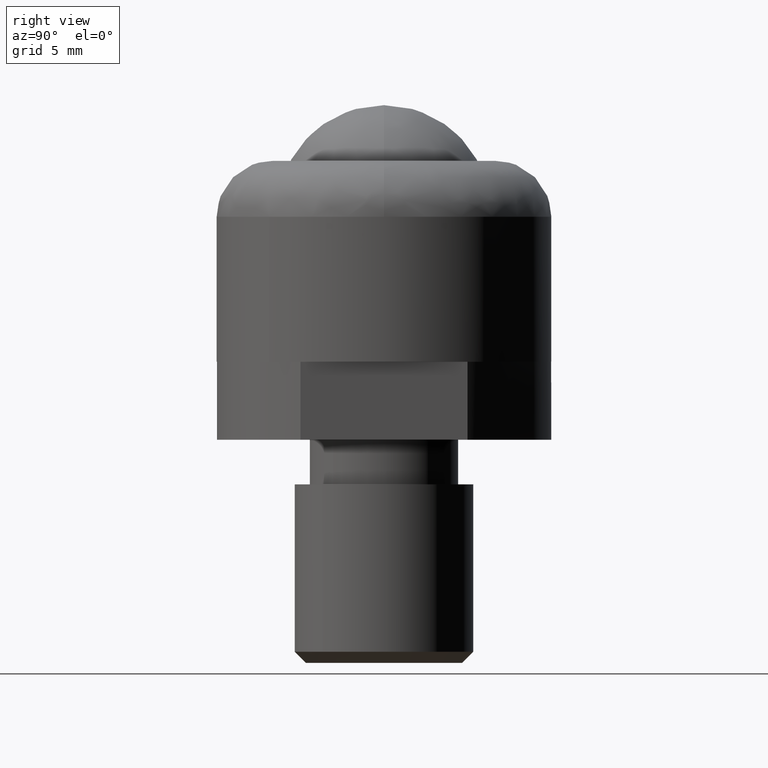
[diagram: clean part render]
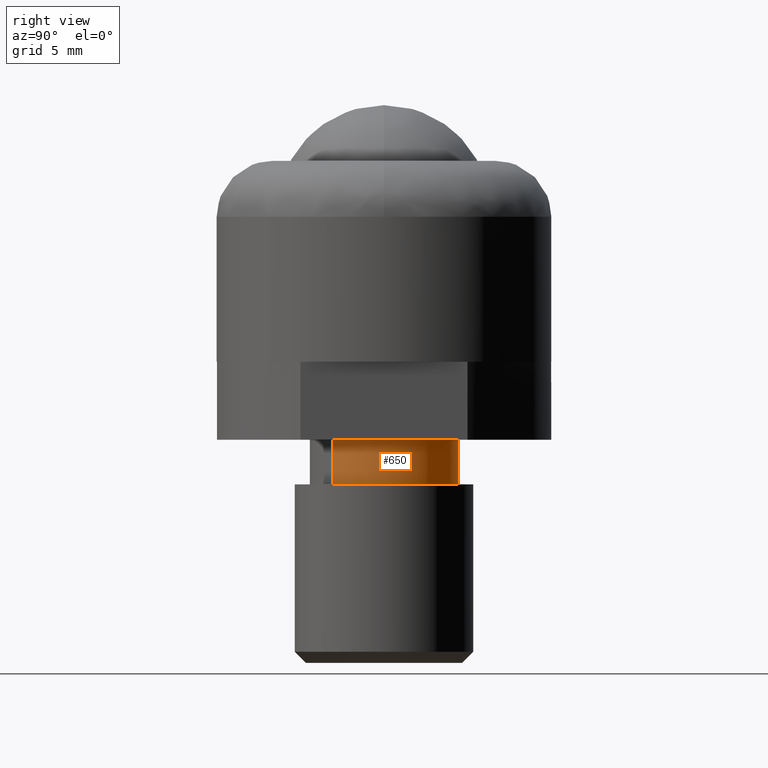
[diagram: same view with one face highlighted and labeled with its STEP entity id]
A machine part, right view. The second image highlights one B-rep face of the part: STEP entity #650.
In plain terms, the highlighted face is a freeform B-spline surface patch.
Its self-contained STEP definition (entity closure, byte-faithful):
#424=CARTESIAN_POINT('',(0.000000328260276,3.323499999999984,-5.499999999999999));
#425=VERTEX_POINT('',#424);
#426=CARTESIAN_POINT('',(3.323500000000000,0.0,-5.500000000000000));
#427=VERTEX_POINT('',#426);
#428=CARTESIAN_POINT('',(0.000000328260276,3.323499999999984,-5.499999999999999));
#429=CARTESIAN_POINT('',(0.217522845624367,3.323527550514971,-5.500000000000003));
#430=CARTESIAN_POINT('',(0.638959797377808,3.281971951859896,-5.499999999999988));
#431=CARTESIAN_POINT('',(1.280345909527368,3.091750987355975,-5.500000000000002));
#432=CARTESIAN_POINT('',(1.823169715455196,2.801573807325724,-5.500000000000008));
#433=CARTESIAN_POINT('',(2.323403362552649,2.401217714072412,-5.499999999999980));
#434=CARTESIAN_POINT('',(2.683059133956340,1.989402720206105,-5.500000000000000));
#435=CARTESIAN_POINT('',(3.001523900041818,1.465398958939423,-5.500000000000015));
#436=CARTESIAN_POINT('',(3.251431004066527,0.829264844882906,-5.499999999999951));
#437=CARTESIAN_POINT('',(3.323601401140202,0.299100297700245,-5.500000000000055));
#438=CARTESIAN_POINT('',(3.323500000000000,0.0,-5.500000000000000));
#439=B_SPLINE_CURVE_WITH_KNOTS('',3,(#428,#429,#430,#431,#432,#433,#434,#435,#436,#437,#438),.UNSPECIFIED.,.F.,.U.,(4,1,1,1,1,1,1,1,4),(3.648533E-009,0.652565620890469,1.264357634494939,1.998505969783550,2.487930316530567,3.181281234908239,3.629928005663308,4.323292100836490,5.220574163771390),.UNSPECIFIED.);
#440=EDGE_CURVE('',#425,#427,#439,.T.);
#442=CARTESIAN_POINT('',(2.410781652410515,-2.287746386657793,-5.499999999999067));
#443=VERTEX_POINT('',#442);
#444=CARTESIAN_POINT('',(3.323500000000000,0.0,-5.500000000000000));
#445=CARTESIAN_POINT('',(3.323527869567976,-0.223415298708609,-5.499999999999908));
#446=CARTESIAN_POINT('',(3.276958093785497,-0.683376990923871,-5.499999999999725));
#447=CARTESIAN_POINT('',(3.080375301651991,-1.300452767698010,-5.499999999999472));
#448=CARTESIAN_POINT('',(2.784144807502874,-1.844891884272609,-5.499999999999249));
#449=CARTESIAN_POINT('',(2.546491492522222,-2.144765707578550,-5.499999999999144));
#450=CARTESIAN_POINT('',(2.410781652410515,-2.287746386657793,-5.499999999999067));
#451=B_SPLINE_CURVE_WITH_KNOTS('',3,(#444,#445,#446,#447,#448,#449,#450),.UNSPECIFIED.,.F.,.U.,(4,1,1,1,4),(2.959368E-009,0.670245403609519,1.379913853449487,1.931883676010702,2.523276547761806),.UNSPECIFIED.);
#452=EDGE_CURVE('',#427,#443,#451,.T.);
#483=CARTESIAN_POINT('',(-2.410781652410507,2.287746386657785,-5.499999999999067));
#484=VERTEX_POINT('',#483);
#495=CARTESIAN_POINT('',(-2.410781652410507,2.287746386657785,-5.499999999999067));
#496=CARTESIAN_POINT('',(-2.246414140303284,2.461010413673526,-5.499999999999130));
#497=CARTESIAN_POINT('',(-1.912421288402456,2.744418345807382,-5.499999999999275));
#498=CARTESIAN_POINT('',(-1.382314586182253,3.039005843036700,-5.499999999999453));
#499=CARTESIAN_POINT('',(-0.758564523148938,3.261348053764329,-5.499999999999713));
#500=CARTESIAN_POINT('',(-0.295026507205840,3.323594254848666,-5.499999999999885));
#501=CARTESIAN_POINT('',(0.000000328260276,3.323499999999984,-5.499999999999999));
#502=B_SPLINE_CURVE_WITH_KNOTS('',3,(#495,#496,#497,#498,#499,#500,#501),.UNSPECIFIED.,.F.,.U.,(4,1,1,1,4),(1.677626E-009,0.716469834532004,1.306503960771558,1.812247081009590,2.697298174060887),.UNSPECIFIED.);
#503=EDGE_CURVE('',#484,#425,#502,.T.);
#527=CARTESIAN_POINT('',(2.410781652535512,-2.287746386526897,-3.500000000000000));
#528=VERTEX_POINT('',#527);
#529=CARTESIAN_POINT('',(2.410781652535512,-2.287746386526897,-3.500000000000000));
#530=CARTESIAN_POINT('',(2.410781652410515,-2.287746386657793,-5.499999999999067));
#531=QUASI_UNIFORM_CURVE('',1,(#529,#530),.UNSPECIFIED.,.F.,.U.);
#532=EDGE_CURVE('',#528,#443,#531,.T.);
#564=CARTESIAN_POINT('',(-2.410781652535520,2.287746386526904,-3.500000000000000));
#565=VERTEX_POINT('',#564);
#576=CARTESIAN_POINT('',(-2.410781652535520,2.287746386526904,-3.500000000000000));
#577=CARTESIAN_POINT('',(-2.410781652410507,2.287746386657785,-5.499999999999067));
#578=QUASI_UNIFORM_CURVE('',1,(#576,#577),.UNSPECIFIED.,.F.,.U.);
#579=EDGE_CURVE('',#565,#484,#578,.T.);
#586=CARTESIAN_POINT('',(-2.410781722060175,2.287746432318986,-3.450000000000000));
#587=CARTESIAN_POINT('',(-0.123035289741189,4.698528154379162,-3.450000000000000));
#588=CARTESIAN_POINT('',(2.287746432318986,2.410781722060175,-3.450000000000000));
#589=CARTESIAN_POINT('',(4.698528154379162,0.123035289741189,-3.450000000000000));
#590=CARTESIAN_POINT('',(2.410781722060175,-2.287746432318986,-3.450000000000000));
#591=CARTESIAN_POINT('',(-2.410781722060175,2.287746432318986,-5.551250000000000));
#592=CARTESIAN_POINT('',(-0.123035289741189,4.698528154379162,-5.551250000000000));
#593=CARTESIAN_POINT('',(2.287746432318986,2.410781722060175,-5.551250000000000));
#594=CARTESIAN_POINT('',(4.698528154379162,0.123035289741189,-5.551250000000000));
#595=CARTESIAN_POINT('',(2.410781722060175,-2.287746432318986,-5.551250000000000));
#603=(BOUNDED_SURFACE()B_SPLINE_SURFACE(2,1,((#586,#591),(#587,#592),(#588,#593),(#589,#594),(#590,#595)),.UNSPECIFIED.,.F.,.F.,.U.)B_SPLINE_SURFACE_WITH_KNOTS((3,2,3),(2,2),(0.0,5.506555098189838,11.013110196379680),(0.0,2.101250000000001),.UNSPECIFIED.)GEOMETRIC_REPRESENTATION_ITEM()RATIONAL_B_SPLINE_SURFACE(((1.0,1.0),(0.707106781186548,0.707106781186548),(1.0,1.0),(0.707106781186548,0.707106781186548),(1.0,1.0)))REPRESENTATION_ITEM('')SURFACE());
#604=ORIENTED_EDGE('',*,*,#452,.F.);
#605=ORIENTED_EDGE('',*,*,#440,.F.);
#606=ORIENTED_EDGE('',*,*,#503,.F.);
#607=ORIENTED_EDGE('',*,*,#579,.F.);
#608=CARTESIAN_POINT('',(0.000000328260231,3.323500000001139,-3.500000000000000));
#609=VERTEX_POINT('',#608);
#610=CARTESIAN_POINT('',(-2.410781652535520,2.287746386526904,-3.500000000000000));
#611=CARTESIAN_POINT('',(-2.265743022978396,2.440616289581794,-3.500000000000000));
#612=CARTESIAN_POINT('',(-1.935816372724498,2.727898544356820,-3.500000000000006));
#613=CARTESIAN_POINT('',(-1.408866547215875,3.029561624934778,-3.499999999999993));
#614=CARTESIAN_POINT('',(-0.758559530430641,3.261339048357221,-3.500000000000006));
#615=CARTESIAN_POINT('',(-0.295028048679430,3.323597074085012,-3.500000000000000));
#616=CARTESIAN_POINT('',(0.000000328260231,3.323500000001139,-3.500000000000000));
#617=B_SPLINE_CURVE_WITH_KNOTS('',3,(#610,#611,#612,#613,#614,#615,#616),.UNSPECIFIED.,.F.,.U.,(4,1,1,1,4),(1.677508E-009,0.632179255057022,1.306503960859534,1.812247081131641,2.697298174242545),.UNSPECIFIED.);
#618=EDGE_CURVE('',#565,#609,#617,.T.);
#619=ORIENTED_EDGE('',*,*,#618,.T.);
#620=CARTESIAN_POINT('',(3.323500000001155,0.0,-3.500000000000000));
#621=VERTEX_POINT('',#620);
#622=CARTESIAN_POINT('',(0.000000328260231,3.323500000001139,-3.500000000000000));
#623=CARTESIAN_POINT('',(0.217523880588000,3.323531093996358,-3.500000000000014));
#624=CARTESIAN_POINT('',(0.557388581758197,3.290003201002441,-3.499999999999985));
#625=CARTESIAN_POINT('',(1.098074981885646,3.151048501386223,-3.500000000000012));
#626=CARTESIAN_POINT('',(1.637995995096274,2.919650195150680,-3.499999999999992));
#627=CARTESIAN_POINT('',(2.141225082282621,2.565210327253279,-3.500000000000001));
#628=CARTESIAN_POINT('',(2.552968179966214,2.148343639205586,-3.500000000000013));
#629=CARTESIAN_POINT('',(2.824747600907005,1.772344366743801,-3.499999999999995));
#630=CARTESIAN_POINT('',(3.065847691840570,1.314539353179935,-3.500000000000011));
#631=CARTESIAN_POINT('',(3.264772541552865,0.747708636549294,-3.499999999999968));
#632=CARTESIAN_POINT('',(3.323568824364878,0.271906282116536,-3.500000000000040));
#633=CARTESIAN_POINT('',(3.323500000001155,0.0,-3.500000000000000));
#634=B_SPLINE_CURVE_WITH_KNOTS('',3,(#622,#623,#624,#625,#626,#627,#628,#629,#630,#631,#632,#633),.UNSPECIFIED.,.F.,.U.,(4,1,1,1,1,1,1,1,1,4),(3.647078E-009,0.652565620889481,1.019642930846127,1.672219006978722,2.406359549496662,2.854998462666676,3.425996730499464,3.793072872185920,4.404864516723691,5.220574163773241),.UNSPECIFIED.);
#635=EDGE_CURVE('',#609,#621,#634,.T.);
#636=ORIENTED_EDGE('',*,*,#635,.T.);
#637=CARTESIAN_POINT('',(3.323500000001155,0.0,-3.500000000000000));
#638=CARTESIAN_POINT('',(3.323547653672411,-0.249702458215003,-3.499999999999998));
#639=CARTESIAN_POINT('',(3.271412820843233,-0.709648184992942,-3.500000000000003));
#640=CARTESIAN_POINT('',(3.084373940135841,-1.273492025046416,-3.499999999999996));
#641=CARTESIAN_POINT('',(2.813679509339027,-1.800467284709844,-3.500000000000009));
#642=CARTESIAN_POINT('',(2.582706516952638,-2.106655845293478,-3.500000000000000));
#643=CARTESIAN_POINT('',(2.410781652535512,-2.287746386526897,-3.500000000000000));
#644=B_SPLINE_CURVE_WITH_KNOTS('',3,(#637,#638,#639,#640,#641,#642,#643),.UNSPECIFIED.,.F.,.U.,(4,1,1,1,4),(2.958826E-009,0.749098426697798,1.379913853350701,1.774178123845089,2.523276547581471),.UNSPECIFIED.);
#645=EDGE_CURVE('',#621,#528,#644,.T.);
#646=ORIENTED_EDGE('',*,*,#645,.T.);
#647=ORIENTED_EDGE('',*,*,#532,.T.);
#648=EDGE_LOOP('',(#604,#605,#606,#607,#619,#636,#646,#647));
#649=FACE_OUTER_BOUND('',#648,.T.);
#650=ADVANCED_FACE('',(#649),#603,.T.);